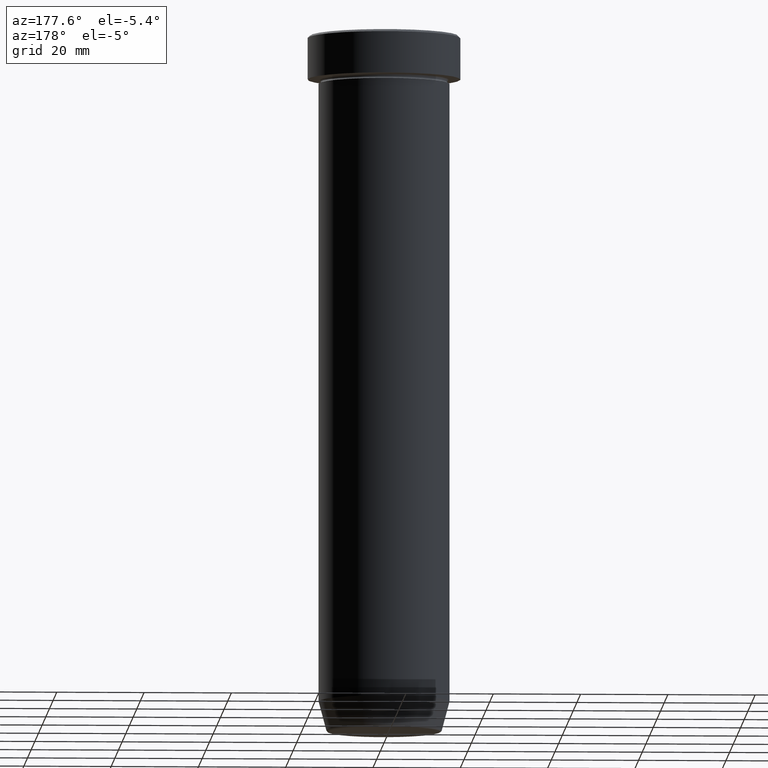
[diagram: clean part render]
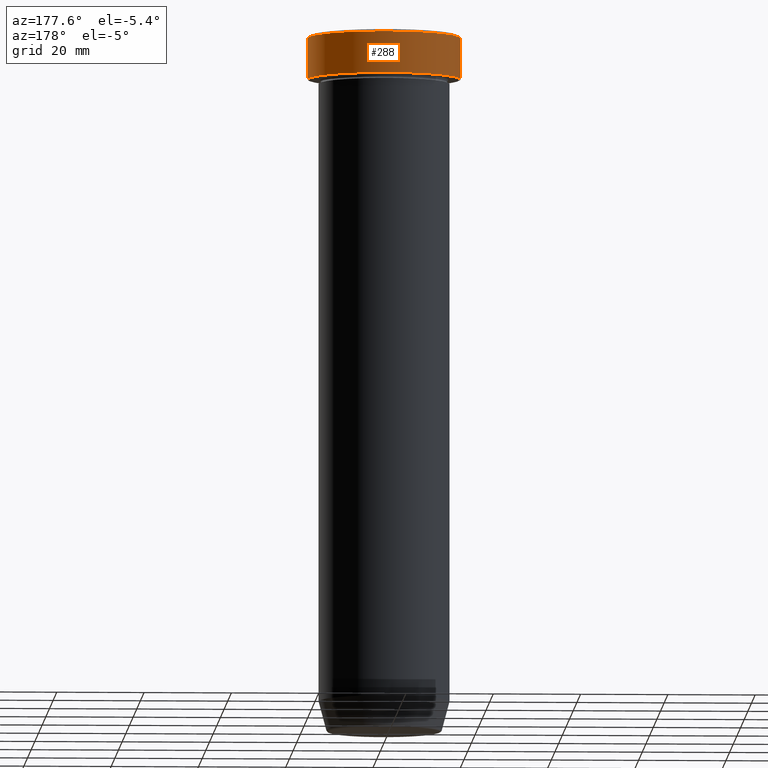
[diagram: same view with one face highlighted and labeled with its STEP entity id]
A machine part, auxiliary view. The second image highlights one B-rep face of the part: STEP entity #288.
In plain terms, the highlighted cylindrical surface (partial cylindrical patch) has radius 17.5 mm, axis along (-0, -0, 1).
Its self-contained STEP definition (entity closure, byte-faithful):
#1 = CARTESIAN_POINT ( 'NONE',  ( -17.50000000000000000, 2.143131898507868248E-15, 0.000000000000000000 ) ) ;
#14 = AXIS2_PLACEMENT_3D ( 'NONE', #116, #70, #536 ) ;
#15 = CARTESIAN_POINT ( 'NONE',  ( -17.50000000000000000, 2.143131898507868248E-15, -0.5000000000000073275 ) ) ;
#26 = LINE ( 'NONE', #28, #381 ) ;
#28 = CARTESIAN_POINT ( 'NONE',  ( 17.50000000000000000, 0.000000000000000000, 0.000000000000000000 ) ) ;
#44 = CARTESIAN_POINT ( 'NONE',  ( 17.50000000000000000, 0.000000000000000000, -9.999999999999998224 ) ) ;
#60 = VERTEX_POINT ( 'NONE', #245 ) ;
#70 = DIRECTION ( 'NONE',  ( -0.000000000000000000, -0.000000000000000000, 1.000000000000000000 ) ) ;
#75 = DIRECTION ( 'NONE',  ( 1.000000000000000000, 0.000000000000000000, 0.000000000000000000 ) ) ;
#113 = ORIENTED_EDGE ( 'NONE', *, *, #295, .F. ) ;
#116 = CARTESIAN_POINT ( 'NONE',  ( 0.000000000000000000, 0.000000000000000000, -9.999999999999998224 ) ) ;
#128 = CIRCLE ( 'NONE', #403, 17.50000000000000000 ) ;
#169 = DIRECTION ( 'NONE',  ( 1.000000000000000000, 0.000000000000000000, 0.000000000000000000 ) ) ;
#230 = AXIS2_PLACEMENT_3D ( 'NONE', #297, #574, #75 ) ;
#245 = CARTESIAN_POINT ( 'NONE',  ( -17.50000000000000000, 2.143131898507868248E-15, -9.999999999999998224 ) ) ;
#253 = VERTEX_POINT ( 'NONE', #15 ) ;
#282 = VECTOR ( 'NONE', #457, 1000.000000000000000 ) ;
#288 = ADVANCED_FACE ( 'NONE', ( #299 ), #385, .T. ) ;
#295 = EDGE_CURVE ( 'NONE', #504, #541, #26, .T. ) ;
#297 = CARTESIAN_POINT ( 'NONE',  ( 0.000000000000000000, 0.000000000000000000, 0.000000000000000000 ) ) ;
#299 = FACE_OUTER_BOUND ( 'NONE', #480, .T. ) ;
#302 = DIRECTION ( 'NONE',  ( 0.000000000000000000, 0.000000000000000000, -1.000000000000000000 ) ) ;
#321 = CIRCLE ( 'NONE', #14, 17.50000000000000000 ) ;
#341 = DIRECTION ( 'NONE',  ( -0.000000000000000000, -0.000000000000000000, 1.000000000000000000 ) ) ;
#352 = EDGE_CURVE ( 'NONE', #504, #60, #321, .T. ) ;
#357 = ORIENTED_EDGE ( 'NONE', *, *, #360, .T. ) ;
#360 = EDGE_CURVE ( 'NONE', #253, #541, #128, .T. ) ;
#381 = VECTOR ( 'NONE', #341, 1000.000000000000000 ) ;
#385 = CYLINDRICAL_SURFACE ( 'NONE', #230, 17.50000000000000000 ) ;
#403 = AXIS2_PLACEMENT_3D ( 'NONE', #438, #302, #169 ) ;
#409 = LINE ( 'NONE', #1, #282 ) ;
#438 = CARTESIAN_POINT ( 'NONE',  ( 0.000000000000000000, 0.000000000000000000, -0.5000000000000073275 ) ) ;
#457 = DIRECTION ( 'NONE',  ( -0.000000000000000000, -0.000000000000000000, 1.000000000000000000 ) ) ;
#467 = EDGE_CURVE ( 'NONE', #60, #253, #409, .T. ) ;
#480 = EDGE_LOOP ( 'NONE', ( #565, #570, #357, #113 ) ) ;
#504 = VERTEX_POINT ( 'NONE', #44 ) ;
#536 = DIRECTION ( 'NONE',  ( 1.000000000000000000, 0.000000000000000000, 0.000000000000000000 ) ) ;
#541 = VERTEX_POINT ( 'NONE', #562 ) ;
#562 = CARTESIAN_POINT ( 'NONE',  ( 17.50000000000000000, 0.000000000000000000, -0.5000000000000073275 ) ) ;
#565 = ORIENTED_EDGE ( 'NONE', *, *, #352, .T. ) ;
#570 = ORIENTED_EDGE ( 'NONE', *, *, #467, .T. ) ;
#574 = DIRECTION ( 'NONE',  ( -0.000000000000000000, -0.000000000000000000, 1.000000000000000000 ) ) ;